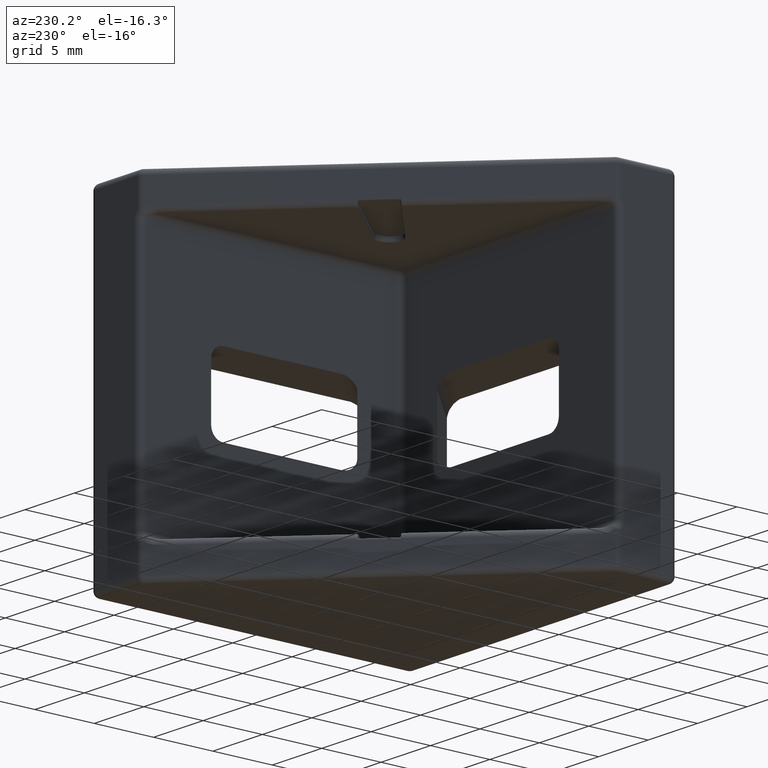
[diagram: clean part render]
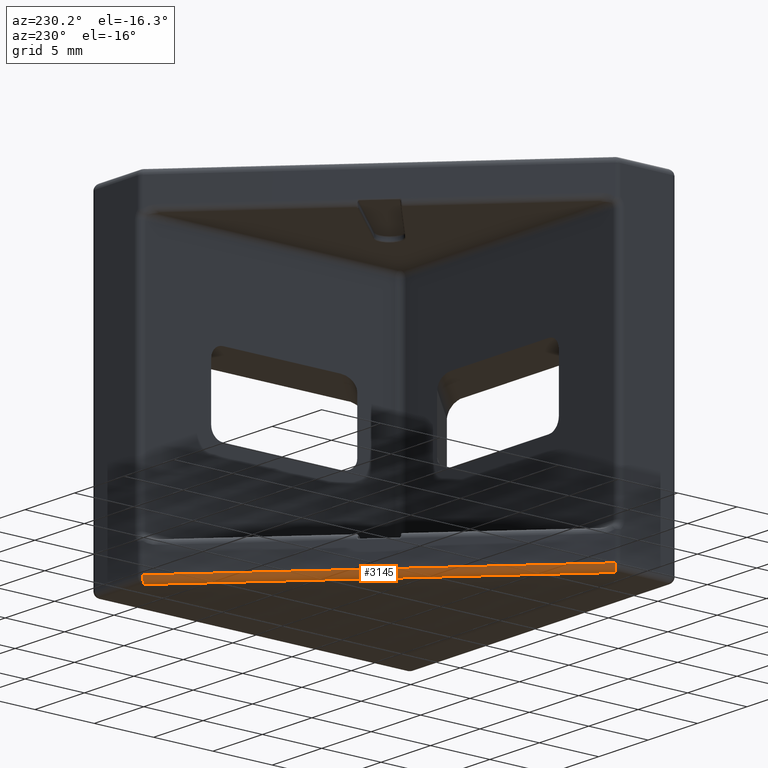
[diagram: same view with one face highlighted and labeled with its STEP entity id]
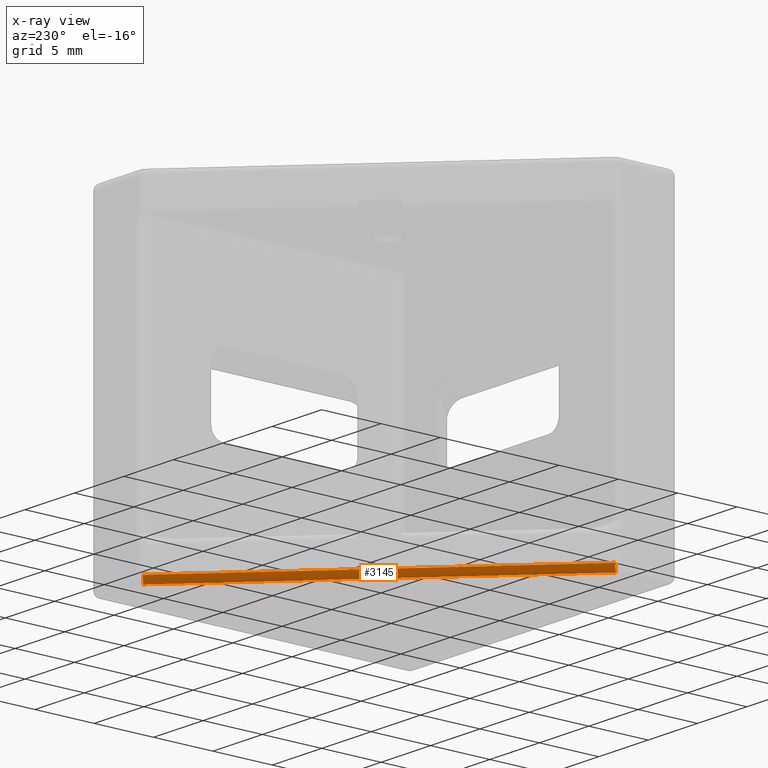
[diagram: x-ray of the same camera — body ghosted, the highlighted face saturated]
A machine part, auxiliary view. The second image highlights one B-rep face of the part: STEP entity #3145.
The next image is the same camera in x-ray: the body ghosted, the highlighted face saturated — about 0% of this face is hidden behind the body in this view.
In plain terms, the highlighted cylindrical surface (edge-blend (fillet) strip) has radius 0.5 mm, axis along (0.7071, 0.7071, 0).
Its self-contained STEP definition (entity closure, byte-faithful):
#330 = ORIENTED_EDGE ( 'NONE', *, *, #8375, .F. ) ;
#661 = CARTESIAN_POINT ( 'NONE',  ( -4.792893218813456500, 26.50000000000000000, -13.50000000000000000 ) ) ;
#1415 = CARTESIAN_POINT ( 'NONE',  ( -26.85355339059326600, 5.146446609406724300, -13.50000000000000000 ) ) ;
#1435 = ORIENTED_EDGE ( 'NONE', *, *, #2664, .F. ) ;
#1626 = VERTEX_POINT ( 'NONE', #6599 ) ;
#1767 = CARTESIAN_POINT ( 'NONE',  ( -26.99999999999999300, 4.999999999999996400, -13.50000000000000000 ) ) ;
#2633 = CARTESIAN_POINT ( 'NONE',  ( -26.49999999999999300, 4.792893218813451200, -13.50000000000000000 ) ) ;
#2664 = EDGE_CURVE ( 'NONE', #1626, #4486, #5570, .T. ) ;
#2704 = EDGE_LOOP ( 'NONE', ( #9928, #330, #3774, #1435 ) ) ;
#2755 = LINE ( 'NONE', #7195, #8048 ) ;
#3145 = ADVANCED_FACE ( 'NONE', ( #9706 ), #10211, .T. ) ;
#3517 = DIRECTION ( 'NONE',  ( 0.7071067811865458000, -0.7071067811865492400, 0.0000000000000000000 ) ) ;
#3765 = VERTEX_POINT ( 'NONE', #7427 ) ;
#3774 = ORIENTED_EDGE ( 'NONE', *, *, #4362, .F. ) ;
#3861 = CIRCLE ( 'NONE', #6399, 0.4999999999999994400 ) ;
#4362 = EDGE_CURVE ( 'NONE', #4486, #3765, #3861, .T. ) ;
#4486 = VERTEX_POINT ( 'NONE', #1415 ) ;
#5570 = LINE ( 'NONE', #1767, #8321 ) ;
#5583 = DIRECTION ( 'NONE',  ( -0.7071067811865441300, 0.7071067811865510100, 0.0000000000000000000 ) ) ;
#5893 = DIRECTION ( 'NONE',  ( -0.7071067811865484600, -0.7071067811865468000, 2.453269466693393500E-015 ) ) ;
#6224 = DIRECTION ( 'NONE',  ( -0.7071067811865466800, 0.7071067811865484600, 0.0000000000000000000 ) ) ;
#6272 = AXIS2_PLACEMENT_3D ( 'NONE', #661, #9523, #5583 ) ;
#6323 = CARTESIAN_POINT ( 'NONE',  ( -26.64644660940672000, 4.646446609406723400, -13.50000000000000000 ) ) ;
#6399 = AXIS2_PLACEMENT_3D ( 'NONE', #2633, #5893, #3517 ) ;
#6599 = CARTESIAN_POINT ( 'NONE',  ( -5.146446609406728700, 26.85355339059327700, -13.50000000000000000 ) ) ;
#7062 = DIRECTION ( 'NONE',  ( 0.7071067811865473500, 0.7071067811865477900, 0.0000000000000000000 ) ) ;
#7195 = CARTESIAN_POINT ( 'NONE',  ( -4.646446609406725200, 26.64644660940673000, -14.00000000000000000 ) ) ;
#7427 = CARTESIAN_POINT ( 'NONE',  ( -26.49999999999999300, 4.792893218813449400, -14.00000000000000000 ) ) ;
#7926 = CIRCLE ( 'NONE', #6272, 0.5000000000000006700 ) ;
#7984 = CARTESIAN_POINT ( 'NONE',  ( -4.792893218813456500, 26.50000000000000000, -14.00000000000000000 ) ) ;
#8048 = VECTOR ( 'NONE', #9740, 1000.000000000000000 ) ;
#8321 = VECTOR ( 'NONE', #9742, 1000.000000000000000 ) ;
#8375 = EDGE_CURVE ( 'NONE', #3765, #8818, #2755, .T. ) ;
#8784 = EDGE_CURVE ( 'NONE', #1626, #8818, #7926, .T. ) ;
#8818 = VERTEX_POINT ( 'NONE', #7984 ) ;
#9523 = DIRECTION ( 'NONE',  ( -0.7071067811865510100, -0.7071067811865441300, -0.0000000000000000000 ) ) ;
#9570 = AXIS2_PLACEMENT_3D ( 'NONE', #6323, #7062, #6224 ) ;
#9706 = FACE_OUTER_BOUND ( 'NONE', #2704, .T. ) ;
#9740 = DIRECTION ( 'NONE',  ( 0.7071067811865473500, 0.7071067811865477900, -0.0000000000000000000 ) ) ;
#9742 = DIRECTION ( 'NONE',  ( -0.7071067811865473500, -0.7071067811865477900, 0.0000000000000000000 ) ) ;
#9928 = ORIENTED_EDGE ( 'NONE', *, *, #8784, .T. ) ;
#10211 = CYLINDRICAL_SURFACE ( 'NONE', #9570, 0.4999999999999988300 ) ;